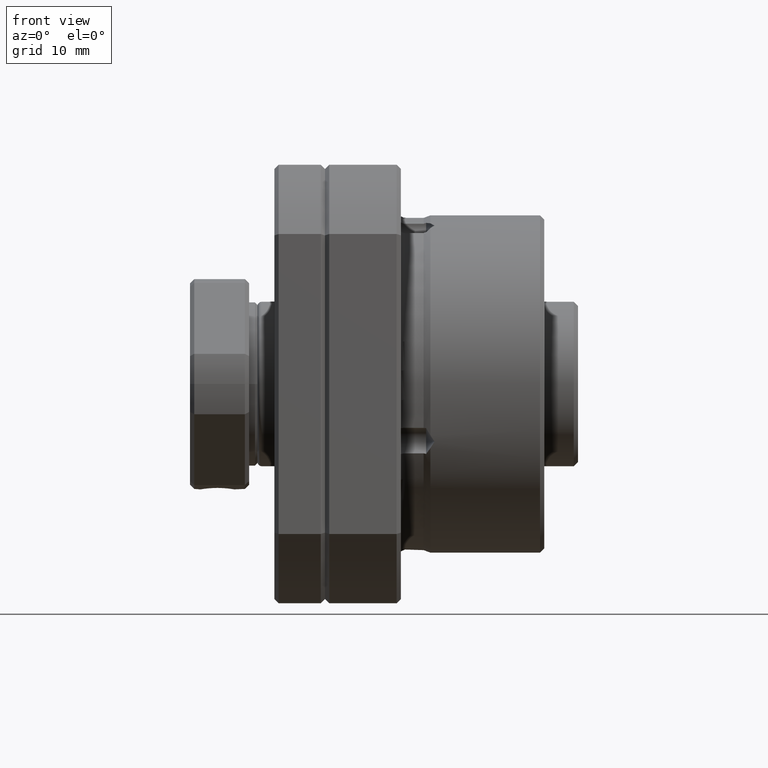
[diagram: clean part render]
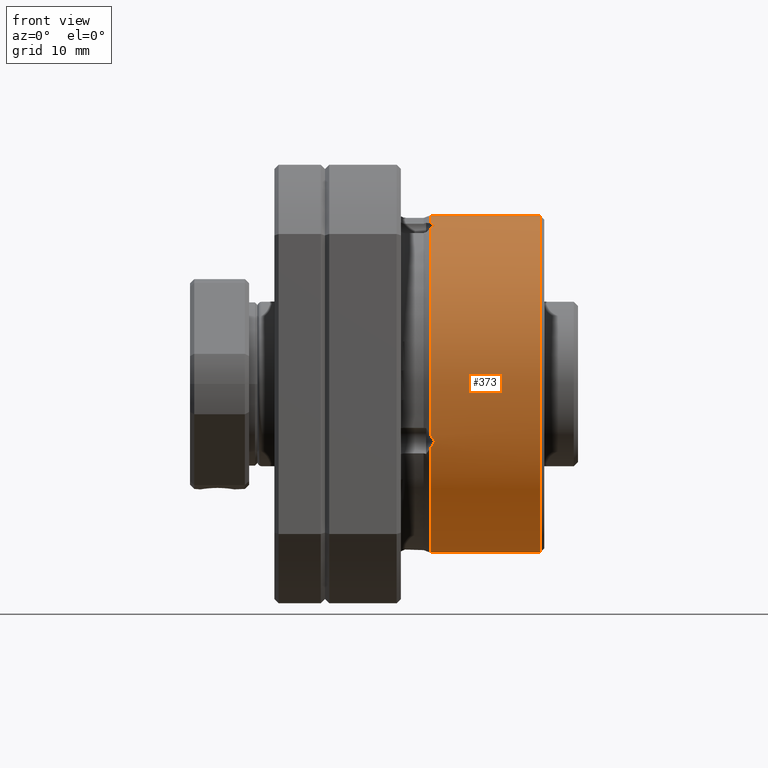
[diagram: same view with one face highlighted and labeled with its STEP entity id]
A machine part, front view. The second image highlights one B-rep face of the part: STEP entity #373.
In plain terms, the highlighted cylindrical surface (partial cylindrical patch) has radius 20 mm, axis along (-1, -0, -0).
Its self-contained STEP definition (entity closure, byte-faithful):
#174 = VERTEX_POINT ( 'NONE', #3080 ) ;
#219 = VERTEX_POINT ( 'NONE', #3142 ) ;
#263 = VERTEX_POINT ( 'NONE', #3225 ) ;
#286 = EDGE_CURVE ( 'NONE', #263, #174, #3249, .T. ) ;
#292 = EDGE_CURVE ( 'NONE', #20236, #219, #3231, .T. ) ;
#295 = ORIENTED_EDGE ( 'NONE', *, *, #19699, .T. ) ;
#299 = ORIENTED_EDGE ( 'NONE', *, *, #286, .T. ) ;
#302 = ORIENTED_EDGE ( 'NONE', *, *, #292, .T. ) ;
#310 = EDGE_LOOP ( 'NONE', ( #311, #299, #295, #313, #302, #391, #388, #393, #392, #395 ) ) ;
#311 = ORIENTED_EDGE ( 'NONE', *, *, #19558, .F. ) ;
#313 = ORIENTED_EDGE ( 'NONE', *, *, #20228, .F. ) ;
#353 = VERTEX_POINT ( 'NONE', #3361 ) ;
#359 = EDGE_CURVE ( 'NONE', #353, #362, #3389, .T. ) ;
#362 = VERTEX_POINT ( 'NONE', #3380 ) ;
#373 = ADVANCED_FACE ( 'NONE', ( #3409 ), #3402, .T. ) ;
#388 = ORIENTED_EDGE ( 'NONE', *, *, #20339, .F. ) ;
#390 = EDGE_CURVE ( 'NONE', #20338, #353, #3425, .T. ) ;
#391 = ORIENTED_EDGE ( 'NONE', *, *, #394, .T. ) ;
#392 = ORIENTED_EDGE ( 'NONE', *, *, #359, .T. ) ;
#393 = ORIENTED_EDGE ( 'NONE', *, *, #390, .T. ) ;
#394 = EDGE_CURVE ( 'NONE', #219, #20331, #3474, .T. ) ;
#395 = ORIENTED_EDGE ( 'NONE', *, *, #20082, .F. ) ;
#3080 = CARTESIAN_POINT ( 'NONE',  ( 25.50000000000000700, 0.0000000000000000000, 20.00000000000000000 ) ) ;
#3142 = CARTESIAN_POINT ( 'NONE',  ( 12.99142002139547500, -6.840402866513123600, 18.79385241571826300 ) ) ;
#3225 = CARTESIAN_POINT ( 'NONE',  ( 25.50000000000000700, 2.449212707644754500E-015, -20.00000000000000000 ) ) ;
#3228 = CARTESIAN_POINT ( 'NONE',  ( 12.66378947979722200, -6.326110951184263700, 18.97510625584361300 ) ) ;
#3229 = CARTESIAN_POINT ( 'NONE',  ( 12.49999999999999600, -6.066306887913179400, 19.05780471989513800 ) ) ;
#3231 = B_SPLINE_CURVE_WITH_KNOTS ( 'NONE', 3,
 ( #3229, #3228, #3281, #3280 ),
 .UNSPECIFIED., .F., .F.,
 ( 4, 4 ),
 ( 0.0001381446588833872600, 0.001092286702281322500 ),
 .UNSPECIFIED. ) ;
#3245 = DIRECTION ( 'NONE',  ( 0.0000000000000000000, 0.0000000000000000000, 1.000000000000000000 ) ) ;
#3246 = DIRECTION ( 'NONE',  ( -1.000000000000000000, -0.0000000000000000000, -0.0000000000000000000 ) ) ;
#3247 = CARTESIAN_POINT ( 'NONE',  ( 25.50000000000000700, 0.0000000000000000000, 0.0000000000000000000 ) ) ;
#3248 = AXIS2_PLACEMENT_3D ( 'NONE', #3247, #3246, #3245 ) ;
#3249 = CIRCLE ( 'NONE', #3248, 20.00000000000000000 ) ;
#3280 = CARTESIAN_POINT ( 'NONE',  ( 12.99142002139547500, -6.840402866513123600, 18.79385241571826300 ) ) ;
#3281 = CARTESIAN_POINT ( 'NONE',  ( 12.82761352765467000, -6.584224064756758900, 18.88709387420755400 ) ) ;
#3361 = CARTESIAN_POINT ( 'NONE',  ( 12.99142002139547500, -18.79385241571824100, -6.840402866513185700 ) ) ;
#3380 = CARTESIAN_POINT ( 'NONE',  ( 12.49999999999999600, -18.49847230782918200, -7.603060060033534700 ) ) ;
#3384 = CARTESIAN_POINT ( 'NONE',  ( 12.49999999999999600, -18.49847230782918200, -7.603060060033534700 ) ) ;
#3385 = CARTESIAN_POINT ( 'NONE',  ( 12.66378947937167400, -18.60212044153561100, -7.350881053687752200 ) ) ;
#3386 = CARTESIAN_POINT ( 'NONE',  ( 12.82759497436936300, -18.70060039637896000, -7.096610683966404500 ) ) ;
#3387 = CARTESIAN_POINT ( 'NONE',  ( 12.99142002139547500, -18.79385241571824100, -6.840402866513185700 ) ) ;
#3389 = B_SPLINE_CURVE_WITH_KNOTS ( 'NONE', 3,
 ( #3387, #3386, #3385, #3384 ),
 .UNSPECIFIED., .F., .F.,
 ( 4, 4 ),
 ( -2.188882965782280000E-008, 0.0009542282239881391200 ),
 .UNSPECIFIED. ) ;
#3399 = DIRECTION ( 'NONE',  ( 0.0000000000000000000, 0.0000000000000000000, 1.000000000000000000 ) ) ;
#3400 = DIRECTION ( 'NONE',  ( -1.000000000000000000, -0.0000000000000000000, -0.0000000000000000000 ) ) ;
#3401 = AXIS2_PLACEMENT_3D ( 'NONE', #3403, #3400, #3399 ) ;
#3402 = CYLINDRICAL_SURFACE ( 'NONE', #3401, 20.00000000000000000 ) ;
#3403 = CARTESIAN_POINT ( 'NONE',  ( -94.46891865289678900, 0.0000000000000000000, 0.0000000000000000000 ) ) ;
#3409 = FACE_OUTER_BOUND ( 'NONE', #310, .T. ) ;
#3419 = CARTESIAN_POINT ( 'NONE',  ( 12.99142002139547500, -18.79385241571824100, -6.840402866513185700 ) ) ;
#3420 = CARTESIAN_POINT ( 'NONE',  ( 12.82761352765467000, -18.88709387420753300, -6.584224064756824600 ) ) ;
#3421 = CARTESIAN_POINT ( 'NONE',  ( 12.66378947979722200, -18.97510625584359200, -6.326110951184328500 ) ) ;
#3422 = CARTESIAN_POINT ( 'NONE',  ( 12.49999999999999600, -19.05780471989511700, -6.066306887913244200 ) ) ;
#3425 = B_SPLINE_CURVE_WITH_KNOTS ( 'NONE', 3,
 ( #3422, #3421, #3420, #3419 ),
 .UNSPECIFIED., .F., .F.,
 ( 4, 4 ),
 ( 0.0001381446588833871000, 0.001092286702281324900 ),
 .UNSPECIFIED. ) ;
#3469 = CARTESIAN_POINT ( 'NONE',  ( 12.49999999999999600, -7.603060060033468100, 18.49847230782920700 ) ) ;
#3470 = CARTESIAN_POINT ( 'NONE',  ( 12.66378947937167600, -7.350881053687684700, 18.60212044153563900 ) ) ;
#3471 = CARTESIAN_POINT ( 'NONE',  ( 12.82759497436936300, -7.096610683966337000, 18.70060039637898800 ) ) ;
#3472 = CARTESIAN_POINT ( 'NONE',  ( 12.99142002139547500, -6.840402866513123600, 18.79385241571826300 ) ) ;
#3474 = B_SPLINE_CURVE_WITH_KNOTS ( 'NONE', 3,
 ( #3472, #3471, #3470, #3469 ),
 .UNSPECIFIED., .F., .F.,
 ( 4, 4 ),
 ( -2.188882965782280000E-008, 0.0009542282239881371700 ),
 .UNSPECIFIED. ) ;
#16806 = CARTESIAN_POINT ( 'NONE',  ( 12.49999999999999600, 0.0000000000000000000, -20.00000000000000000 ) ) ;
#16837 = DIRECTION ( 'NONE',  ( -1.000000000000000000, -0.0000000000000000000, -0.0000000000000000000 ) ) ;
#16838 = VECTOR ( 'NONE', #16837, 1000.000000000000000 ) ;
#16839 = CARTESIAN_POINT ( 'NONE',  ( -94.46891865289678900, 2.449212707644754500E-015, -20.00000000000000000 ) ) ;
#16840 = LINE ( 'NONE', #16839, #16838 ) ;
#17088 = DIRECTION ( 'NONE',  ( -1.000000000000000000, -0.0000000000000000000, -0.0000000000000000000 ) ) ;
#17089 = VECTOR ( 'NONE', #17088, 1000.000000000000000 ) ;
#17090 = CARTESIAN_POINT ( 'NONE',  ( -94.46891865289678900, 0.0000000000000000000, 20.00000000000000000 ) ) ;
#17091 = LINE ( 'NONE', #17090, #17089 ) ;
#17559 = CARTESIAN_POINT ( 'NONE',  ( 12.49999999999999600, 0.0000000000000000000, 20.00000000000000000 ) ) ;
#17733 = DIRECTION ( 'NONE',  ( 0.0000000000000000000, 0.0000000000000000000, 1.000000000000000000 ) ) ;
#17734 = DIRECTION ( 'NONE',  ( -1.000000000000000000, -0.0000000000000000000, -0.0000000000000000000 ) ) ;
#17735 = CARTESIAN_POINT ( 'NONE',  ( 12.49999999999999600, 0.0000000000000000000, 0.0000000000000000000 ) ) ;
#17736 = AXIS2_PLACEMENT_3D ( 'NONE', #17735, #17734, #17733 ) ;
#17737 = CIRCLE ( 'NONE', #17736, 20.00000000000000000 ) ;
#17952 = CARTESIAN_POINT ( 'NONE',  ( 12.49999999999999600, -6.066306887913179400, 19.05780471989513800 ) ) ;
#17962 = DIRECTION ( 'NONE',  ( 0.0000000000000000000, 0.0000000000000000000, 1.000000000000000000 ) ) ;
#17963 = DIRECTION ( 'NONE',  ( -1.000000000000000000, -0.0000000000000000000, -0.0000000000000000000 ) ) ;
#17964 = CARTESIAN_POINT ( 'NONE',  ( 12.49999999999999600, 0.0000000000000000000, 0.0000000000000000000 ) ) ;
#17965 = AXIS2_PLACEMENT_3D ( 'NONE', #17964, #17963, #17962 ) ;
#17970 = CIRCLE ( 'NONE', #17965, 20.00000000000000000 ) ;
#18134 = DIRECTION ( 'NONE',  ( 0.0000000000000000000, 0.0000000000000000000, 1.000000000000000000 ) ) ;
#18135 = DIRECTION ( 'NONE',  ( -1.000000000000000000, -0.0000000000000000000, -0.0000000000000000000 ) ) ;
#18136 = AXIS2_PLACEMENT_3D ( 'NONE', #18145, #18135, #18134 ) ;
#18137 = CIRCLE ( 'NONE', #18136, 20.00000000000000000 ) ;
#18143 = CARTESIAN_POINT ( 'NONE',  ( 12.49999999999999600, -19.05780471989511700, -6.066306887913244200 ) ) ;
#18145 = CARTESIAN_POINT ( 'NONE',  ( 12.49999999999999600, 0.0000000000000000000, 0.0000000000000000000 ) ) ;
#18146 = CARTESIAN_POINT ( 'NONE',  ( 12.49999999999999600, -7.603060060033468100, 18.49847230782920700 ) ) ;
#19543 = VERTEX_POINT ( 'NONE', #16806 ) ;
#19558 = EDGE_CURVE ( 'NONE', #263, #19543, #16840, .T. ) ;
#19699 = EDGE_CURVE ( 'NONE', #174, #19960, #17091, .T. ) ;
#19960 = VERTEX_POINT ( 'NONE', #17559 ) ;
#20082 = EDGE_CURVE ( 'NONE', #19543, #362, #17737, .T. ) ;
#20228 = EDGE_CURVE ( 'NONE', #20236, #19960, #17970, .T. ) ;
#20236 = VERTEX_POINT ( 'NONE', #17952 ) ;
#20331 = VERTEX_POINT ( 'NONE', #18146 ) ;
#20338 = VERTEX_POINT ( 'NONE', #18143 ) ;
#20339 = EDGE_CURVE ( 'NONE', #20338, #20331, #18137, .T. ) ;